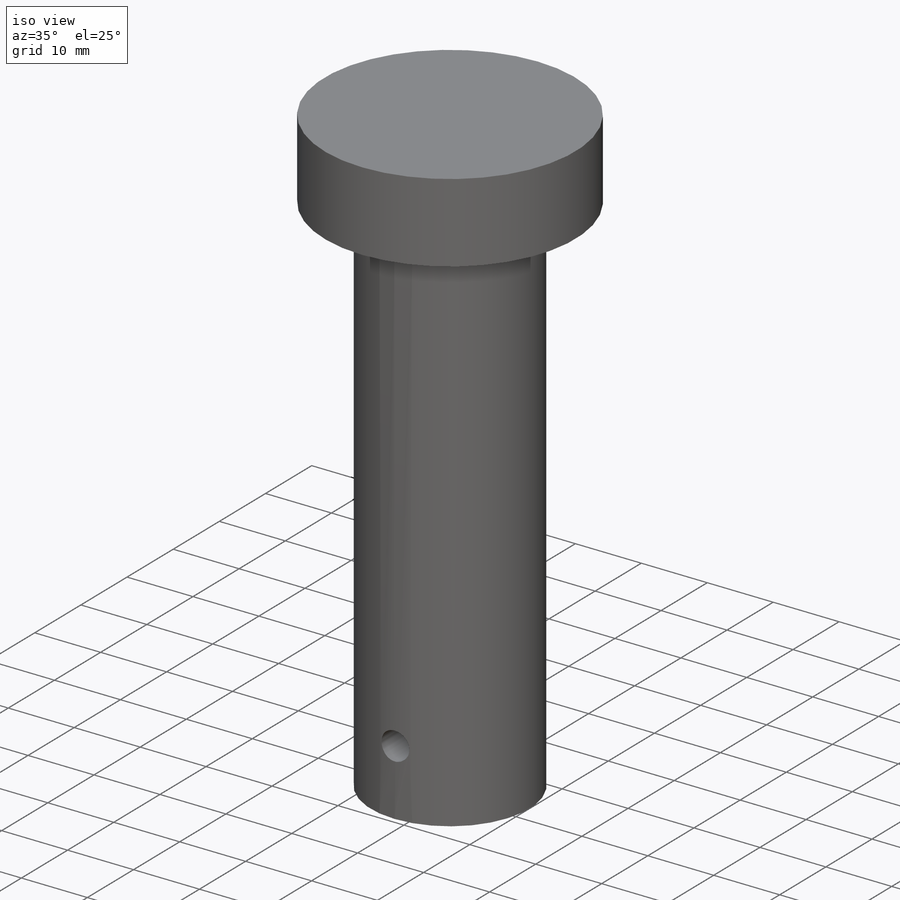
[diagram: iso view]
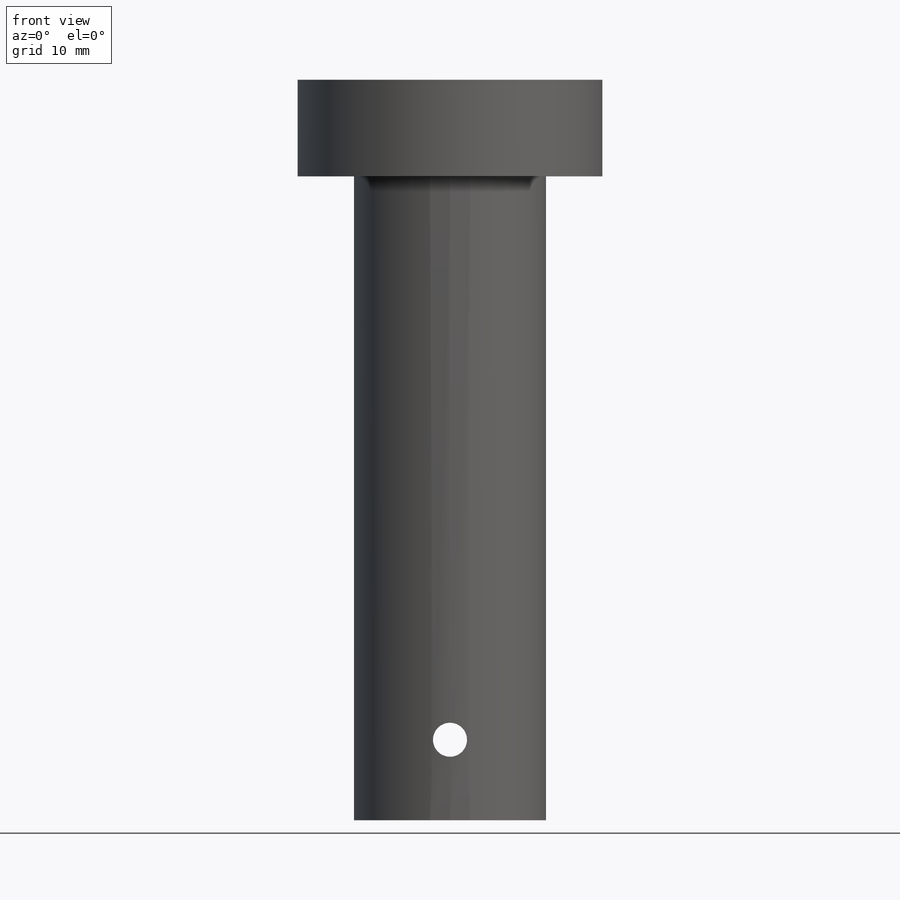
[diagram: front view]
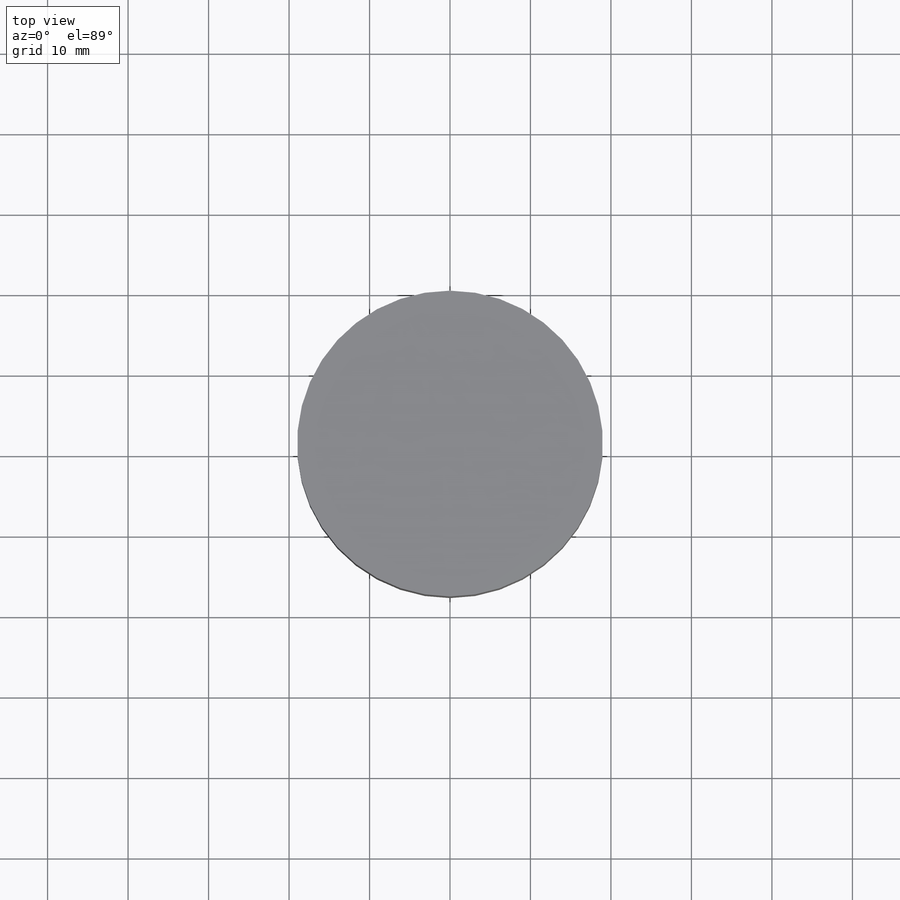
[diagram: top view]
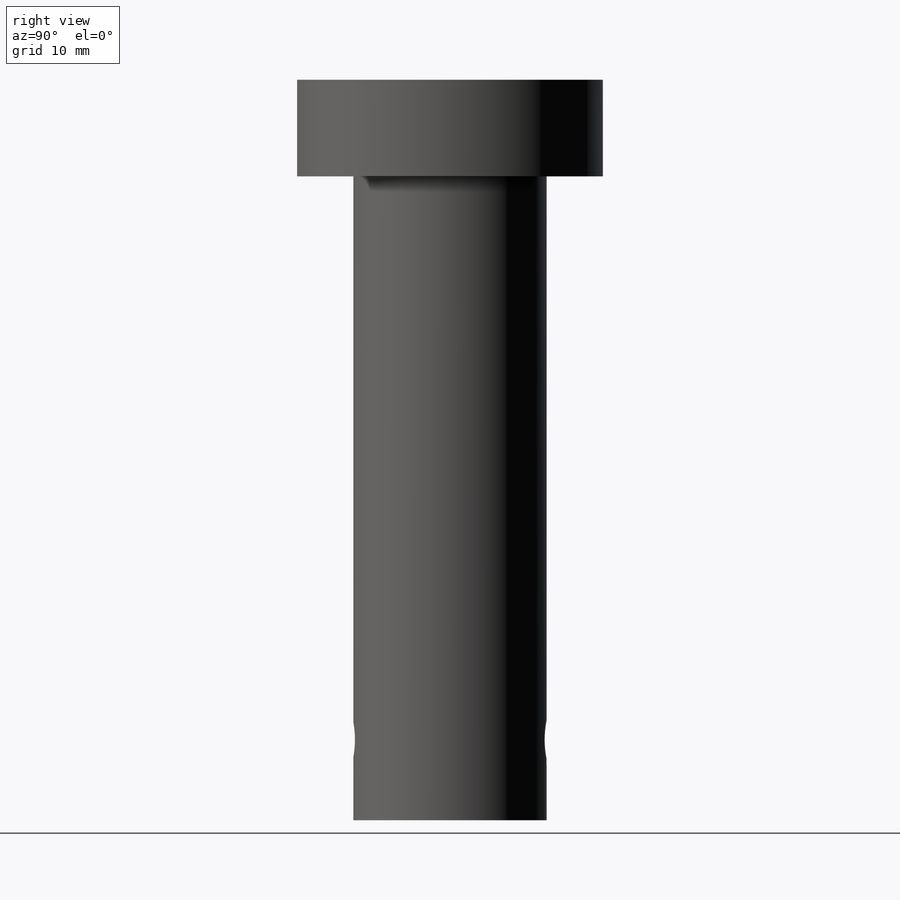
[diagram: right view]
SOLIDWORKS PART (.sldprt)
format: sldprt  version: not decoded by parser v0  size: 117,248 bytes
history: native  units: mm
features: sketch x3, extrude x2, material x1, plane x1, cut_revolve x1 (+12 scaffold rows collapsed)
feature tree (20):
  scaffold x12  (default folders/planes/origin — collapsed)
  material  "Material <not specified>"
  sketch  "Sketch1"  dims[D1=38.0mm]
  extrude  "Boss-Extrude1"  Depth=12mm
  sketch  "Sketch2"  dims[D1=24.0mm]
  extrude  "Boss-Extrude2"  Depth=80mm
  plane  "Plane1"  Offset=10mm
  sketch  "Sketch3"  dims[D1=44.0mm D2=22.0mm D3=2.0mm D4=2.5mm]
  cut_revolve  "Cut-Revolve1"  Angle=360deg
decode coverage: 6 of 6 modeling features carry decoded parameters
note: suppression state not decoded; provenance and decode notes live in map.json
